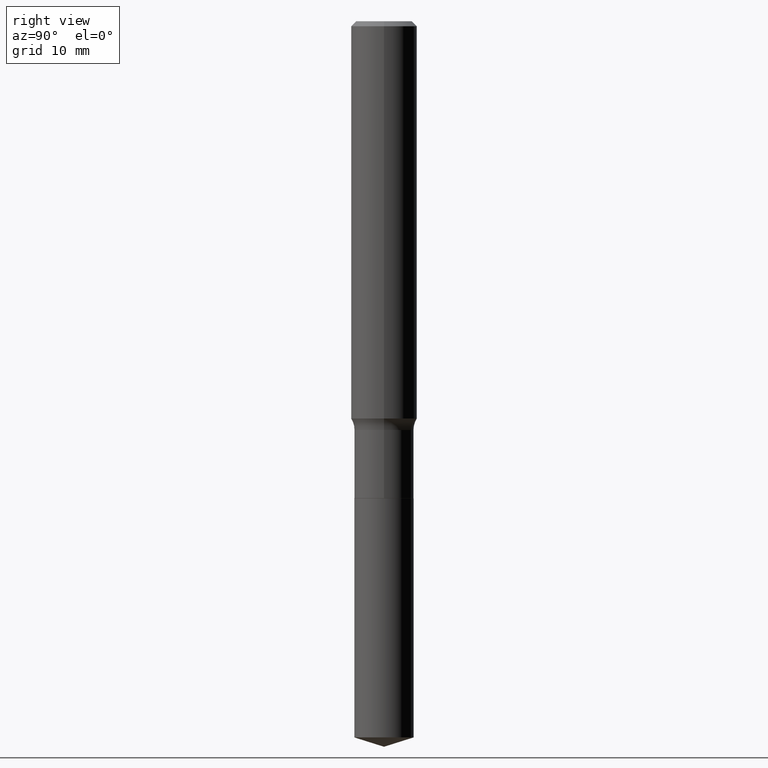
[diagram: clean part render]
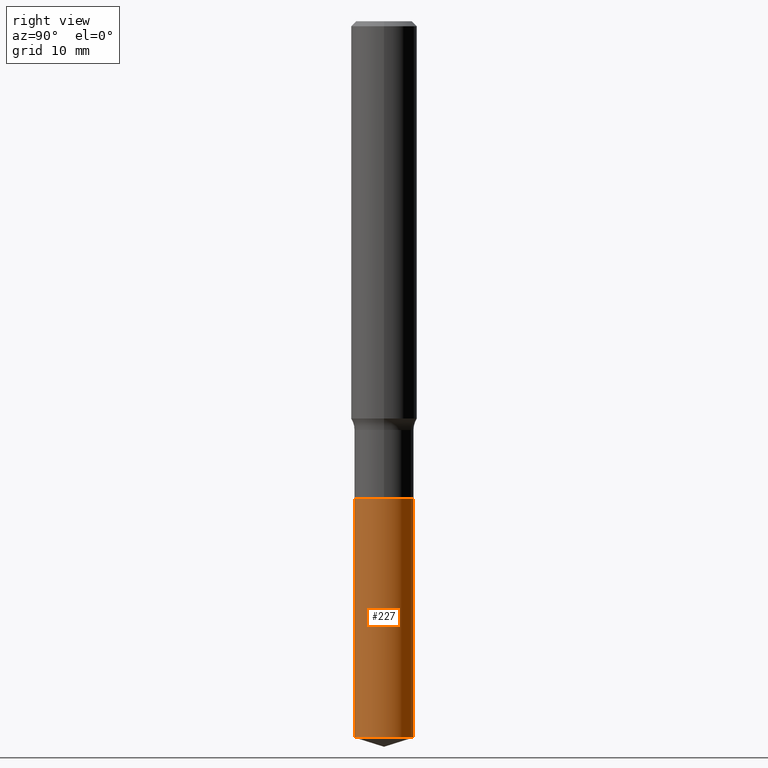
[diagram: same view with one face highlighted and labeled with its STEP entity id]
A machine part, right view. The second image highlights one B-rep face of the part: STEP entity #227.
In plain terms, the highlighted cylindrical surface (edge-blend (fillet) strip) has radius 2.7 mm, axis along (-0, 0, 1).
Its self-contained STEP definition (entity closure, byte-faithful):
#22 = AXIS2_PLACEMENT_3D ( 'NONE', #291, #368, #363 ) ;
#34 = CARTESIAN_POINT ( 'NONE',  ( 7.553069281130493504E-16, 0.1062999999999910683, -2.564883738742165242 ) ) ;
#40 = CARTESIAN_POINT ( 'NONE',  ( 4.178328002247923804E-29, -5.965545015547398653E-15, -1.708599999999999897 ) ) ;
#64 = EDGE_CURVE ( 'NONE', #155, #117, #399, .T. ) ;
#73 = CARTESIAN_POINT ( 'NONE',  ( 4.178328002247923804E-29, -5.965545015547398653E-15, -1.708599999999999897 ) ) ;
#92 = ORIENTED_EDGE ( 'NONE', *, *, #376, .F. ) ;
#99 = ORIENTED_EDGE ( 'NONE', *, *, #442, .F. ) ;
#103 = EDGE_CURVE ( 'NONE', #117, #137, #213, .T. ) ;
#106 = CARTESIAN_POINT ( 'NONE',  ( -7.422889326379875229E-16, -0.1063000000000089845, -2.564883738742163910 ) ) ;
#110 = FACE_OUTER_BOUND ( 'NONE', #241, .T. ) ;
#117 = VERTEX_POINT ( 'NONE', #34 ) ;
#137 = VERTEX_POINT ( 'NONE', #226 ) ;
#152 = VERTEX_POINT ( 'NONE', #264 ) ;
#155 = VERTEX_POINT ( 'NONE', #106 ) ;
#208 = AXIS2_PLACEMENT_3D ( 'NONE', #73, #412, #416 ) ;
#213 = LINE ( 'NONE', #487, #390 ) ;
#222 = CYLINDRICAL_SURFACE ( 'NONE', #208, 0.1063000000000000056 ) ;
#226 = CARTESIAN_POINT ( 'NONE',  ( 7.553069281130492518E-16, 0.1062999999999940520, -1.708600000000000119 ) ) ;
#227 = ADVANCED_FACE ( 'NONE', ( #110 ), #222, .T. ) ;
#241 = EDGE_LOOP ( 'NONE', ( #279, #386, #92, #99 ) ) ;
#247 = CIRCLE ( 'NONE', #359, 0.1063000000000000056 ) ;
#264 = CARTESIAN_POINT ( 'NONE',  ( -7.422889326380084277E-16, -0.1063000000000059592, -1.708599999999999675 ) ) ;
#266 = DIRECTION ( 'NONE',  ( -2.445655666621594660E-29, 3.491213744062702196E-15, 1.000000000000000000 ) ) ;
#279 = ORIENTED_EDGE ( 'NONE', *, *, #64, .T. ) ;
#291 = CARTESIAN_POINT ( 'NONE',  ( 6.272503180138623620E-29, -8.955014573061440103E-15, -2.564883738742164798 ) ) ;
#307 = DIRECTION ( 'NONE',  ( -6.982962677686265922E-15, -1.000000000000000000, 2.569941668545873170E-15 ) ) ;
#323 = DIRECTION ( 'NONE',  ( -2.445655666621594941E-29, 3.491213744062702196E-15, 1.000000000000000000 ) ) ;
#326 = VECTOR ( 'NONE', #323, 39.37007874015748143 ) ;
#359 = AXIS2_PLACEMENT_3D ( 'NONE', #40, #266, #307 ) ;
#363 = DIRECTION ( 'NONE',  ( -6.982962677686265922E-15, -1.000000000000000000, 5.139883337091746339E-15 ) ) ;
#368 = DIRECTION ( 'NONE',  ( -2.445655666621594660E-29, 3.491213744062702196E-15, 1.000000000000000000 ) ) ;
#376 = EDGE_CURVE ( 'NONE', #152, #137, #247, .T. ) ;
#386 = ORIENTED_EDGE ( 'NONE', *, *, #103, .T. ) ;
#390 = VECTOR ( 'NONE', #449, 39.37007874015748143 ) ;
#399 = CIRCLE ( 'NONE', #22, 0.1063000000000000056 ) ;
#400 = LINE ( 'NONE', #443, #326 ) ;
#412 = DIRECTION ( 'NONE',  ( -2.445655666621594660E-29, 3.491213744062702196E-15, 1.000000000000000000 ) ) ;
#416 = DIRECTION ( 'NONE',  ( -6.982962677686265922E-15, -1.000000000000000000, 2.569941668545873170E-15 ) ) ;
#442 = EDGE_CURVE ( 'NONE', #155, #152, #400, .T. ) ;
#443 = CARTESIAN_POINT ( 'NONE',  ( -7.422889326380084277E-16, -0.1063000000000059592, -1.708599999999999675 ) ) ;
#449 = DIRECTION ( 'NONE',  ( -2.445655666621594941E-29, 3.491213744062702196E-15, 1.000000000000000000 ) ) ;
#487 = CARTESIAN_POINT ( 'NONE',  ( 7.553069281130281498E-16, 0.1062999999999940520, -1.708600000000000119 ) ) ;